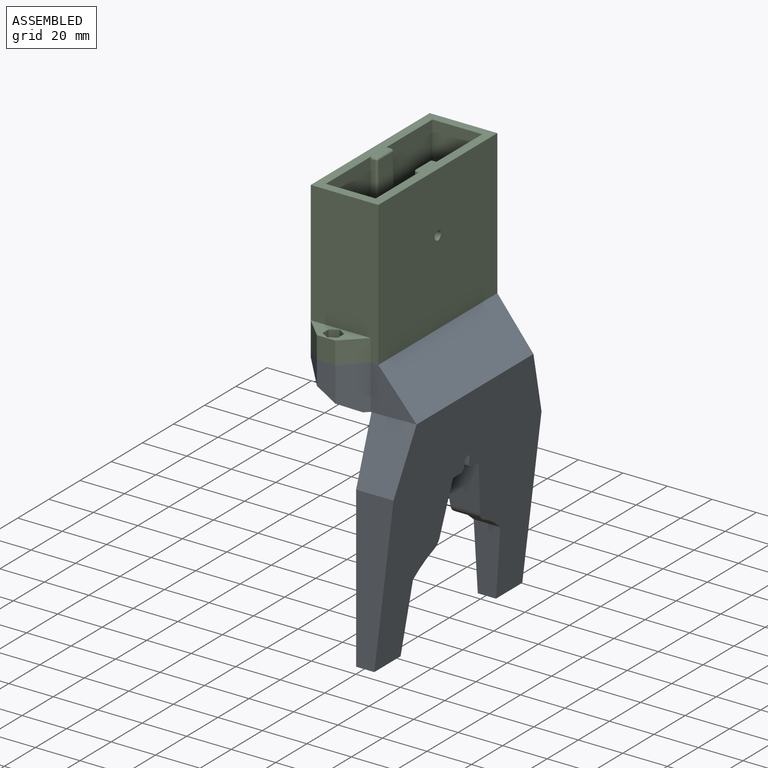
[diagram: assembled view]
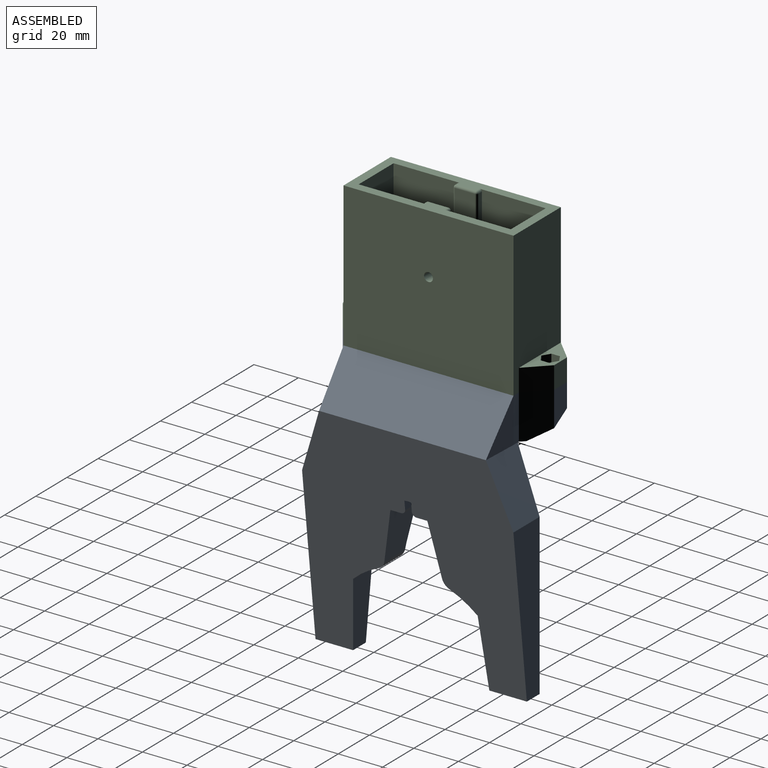
[diagram: assembled view, second angle]
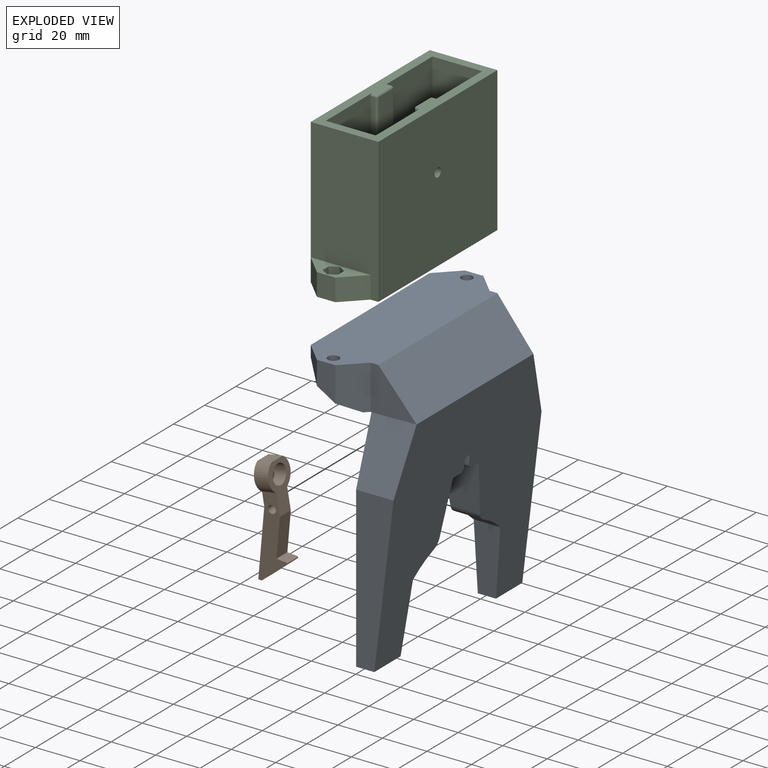
[diagram: exploded view]
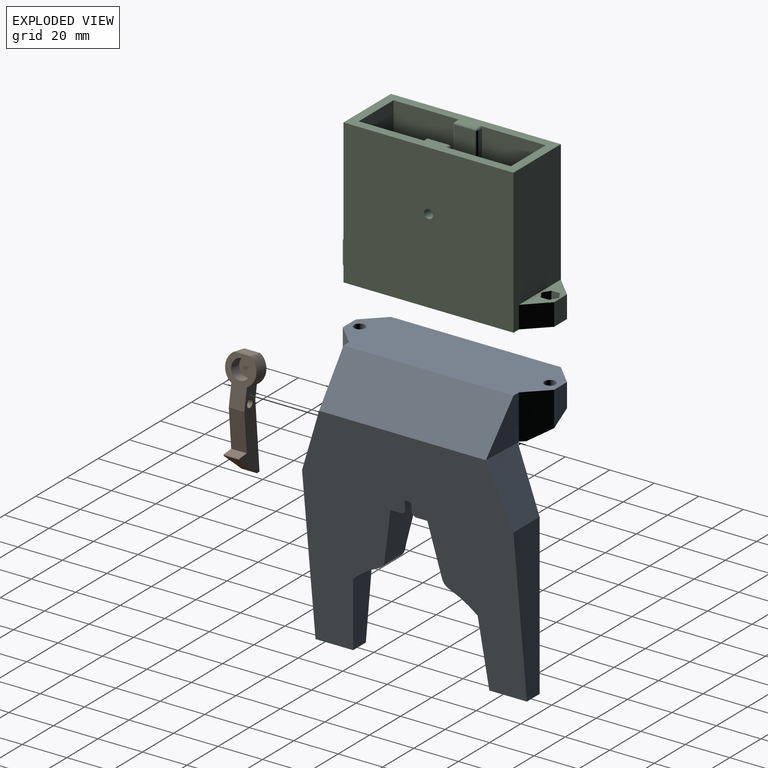
[diagram: exploded view, second angle]
ASSEMBLY  parts=3 mates=2
PART A: 76 faces, bbox 48.2x96.1x121.1 mm
  f0: plane 71.97x16.84mm, normal (0,1,0), area 900.5mm2, adj f1,f13,f29,f53
  f1: plane 100x34.53mm, normal (-1,0,0), area 2723.4mm2, adj f0,f10,f11,f12,f13,f15,f29,f54
  f2: cylinder r=8.67mm len=18.82mm, axis (-1,0,0), area 367.3mm2, adj f3,f9,f16,f17,f18,f19,f21,f32
  f3: plane 35x17mm, normal (-1,0,0), area 312.7mm2, adj f2,f5,f14,f23,f24,f25,f37,f46
  f4: plane 8.6x5.75mm, normal (-1,0,0), area 9.6mm2, adj f5,f6
  f5: cylinder r=4.3mm len=8.6mm, axis (-1,0,0), area 95.8mm2, adj f3,f4,f6,f8
  f6: cylinder r=4.1mm len=8.2mm, axis (-1,0,0), area 63mm2, adj f4,f5,f7,f8
  f7: plane 8.2x8.2mm, normal (-1,0,0), area 52.8mm2, adj f6
  f8: plane 8.1x3.45mm, normal (1,0,0), area 4.3mm2, adj f5,f6
  f9: plane 22.32x18mm, normal (0,-0.98,-0.2), area 354.2mm2, adj f2,f12,f14,f15,f53
  f10: plane 31.08x11.92mm, normal (0,-1,-0.08), area 313.6mm2, adj f1,f11,f13,f53
  f11: cylinder r=40.5mm len=12.88mm, axis (-1,0,0), area 180.7mm2, adj f1,f10,f12,f53
  f12: cylinder r=5mm len=13.32mm, axis (-1,0,0), area 63.4mm2, adj f1,f9,f11,f15,f53
  f13: plane 16.88x8.19mm, normal (0,0,-1), area 138.2mm2, adj f0,f1,f10,f53
  f14: plane 52.89x3.58mm, normal (-0.89,0.45,0), area 175.8mm2, adj f3,f9,f15,f54
  f15: cylinder r=2mm len=57.36mm, axis (0,0,1), area 51.1mm2, adj f1,f9,f12,f14,f54
  f16: plane 4.32x3.87mm, normal (0,-1,0), area 15.8mm2, adj f2,f17,f20,f53
  f17: plane 5.8x3.87mm, normal (-1,0,0), area 14.7mm2, adj f2,f16,f19
  f18: plane 4.75x1.62mm, normal (0,0,-1), area 7.7mm2, adj f2,f19,f20,f53
  f19: cylinder r=2mm len=6.75mm, axis (0,1,0), area 16.6mm2, adj f2,f17,f18,f20
  f20: cylinder r=2mm len=3.86mm, axis (-1,0,0), area 8.6mm2, adj f16,f18,f19,f53
  f21: plane 4.5x4mm, normal (1,0,0), area 11.3mm2, adj f2,f22,f24,f25
  f22: plane 4x2.5mm, normal (0.71,0,-0.71), area 14.1mm2, adj f21,f24,f25,f27
  f23: plane 6.5x4mm, normal (-0.5,0,0.87), area 30mm2, adj f3,f24,f25,f26
  f24: plane 22.25x6.5mm, normal (0,1,0), area 119.7mm2, adj f3,f21,f22,f23,f26,f27,f28
  f25: plane 22.25x6.5mm, normal (0,-1,0), area 119.7mm2, adj f3,f21,f22,f23,f26,f27,f28
  f26: plane 18.5x4mm, normal (-1,0,0), area 74mm2, adj f23,f24,f25,f27
  f27: plane 4x4mm, normal (0,0,-1), area 16mm2, adj f22,f24,f25,f26
  f28: cylinder r=1.75mm len=4mm, axis (0,-1,0), area 44mm2, adj f24,f25
  f29: plane 28.03x20.21mm, normal (0,0.94,0.34), area 551.2mm2, adj f0,f1,f53,f54
  f30: plane 71.97x16.84mm, normal (0,-1,0), area 900.5mm2, adj f31,f36,f52,f53
  f31: plane 100x34.53mm, normal (-1,0,0), area 2723.4mm2, adj f30,f33,f34,f35,f36,f38,f52,f55
  f32: plane 22.32x18mm, normal (0,0.98,-0.2), area 354.2mm2, adj f2,f35,f37,f38,f53
  f33: plane 31.08x11.92mm, normal (0,1,-0.08), area 313.6mm2, adj f31,f34,f36,f53
  f34: cylinder r=40.5mm len=12.88mm, axis (-1,0,0), area 180.7mm2, adj f31,f33,f35,f53
  f35: cylinder r=5mm len=13.32mm, axis (-1,0,0), area 63.4mm2, adj f31,f32,f34,f38,f53
  f36: plane 16.88x8.19mm, normal (0,0,-1), area 138.2mm2, adj f30,f31,f33,f53
  f37: plane 52.89x3.58mm, normal (-0.89,-0.45,0), area 175.8mm2, adj f3,f32,f38,f55
  f38: cylinder r=2mm len=57.36mm, axis (0,0,1), area 51.1mm2, adj f31,f32,f35,f37,f55
  f39: plane 4.32x3.87mm, normal (0,1,0), area 15.8mm2, adj f2,f40,f43,f53
  f40: plane 5.8x3.87mm, normal (-1,0,0), area 14.7mm2, adj f2,f39,f42
  f41: plane 4.75x1.62mm, normal (0,0,-1), area 7.7mm2, adj f2,f42,f43,f53
  f42: cylinder r=2mm len=6.75mm, axis (0,-1,0), area 16.6mm2, adj f2,f40,f41,f43
  f43: cylinder r=2mm len=3.86mm, axis (-1,0,0), area 8.6mm2, adj f39,f41,f42,f53
  f44: plane 4.5x4mm, normal (1,0,0), area 11.3mm2, adj f2,f45,f47,f48
  f45: plane 4x2.5mm, normal (0.71,0,-0.71), area 14.1mm2, adj f44,f47,f48,f50
  f46: plane 6.5x4mm, normal (-0.5,0,0.87), area 30mm2, adj f3,f47,f48,f49
  f47: plane 22.25x6.5mm, normal (0,-1,0), area 119.7mm2, adj f3,f44,f45,f46,f49,f50,f51
  f48: plane 22.25x6.5mm, normal (0,1,0), area 119.7mm2, adj f3,f44,f45,f46,f49,f50,f51
  f49: plane 18.5x4mm, normal (-1,0,0), area 74mm2, adj f46,f47,f48,f50
  f50: plane 4x4mm, normal (0,0,-1), area 16mm2, adj f45,f47,f48,f49
  f51: cylinder r=1.75mm len=4mm, axis (0,1,0), area 44mm2, adj f47,f48
  f52: plane 28.03x20.21mm, normal (0,-0.94,0.34), area 551.2mm2, adj f30,f31,f53,f55
  f53: plane 100.13x95.13mm, normal (0.99,0,-0.12), area 6465.2mm2, adj f0,f2,f9,f10,f11,f12,f13,f16
  f54: plane 31.7x22.21mm, normal (0,0,-1), area 65.7mm2, adj f1,f14,f15,f29,f57,f66,f67,f68
  f55: plane 31.7x22.21mm, normal (0,0,-1), area 65.7mm2, adj f31,f37,f38,f52,f57,f63,f64,f65
  f56: plane 95x30.4mm, normal (0,0,1), area 2610.7mm2, adj f58,f59,f60,f61,f62,f63,f64,f67
  f57: plane 96.08x25.98mm, normal (-0.52,0,-0.86), area 2465.9mm2, adj f3,f54,f55,f58,f59,f60,f61,f62
  f58: plane 76.4x5mm, normal (-1,0,0), area 382mm2, adj f56,f57,f60,f61
  f59: plane 15.6x8.3mm, normal (0,1,0), area 108.8mm2, adj f56,f57,f60,f68
  f60: plane 10.6x9.3mm, normal (-0.71,0.71,0), area 102.6mm2, adj f56,f57,f58,f59
  f61: plane 10.6x9.3mm, normal (-0.71,-0.71,0), area 102.6mm2, adj f56,f57,f58,f62
  f62: plane 15.6x8.3mm, normal (0,-1,0), area 108.8mm2, adj f56,f57,f61,f63
  f63: plane 20x9.3mm, normal (0.71,-0.71,0), area 240.3mm2, adj f55,f56,f57,f62,f64
  f64: plane 20x3.5mm, normal (0,-1,0), area 70mm2, adj f55,f56,f63,f65
  f65: plane 20x16.71mm, normal (0.04,-1,0), area 167.2mm2, adj f55,f64,f69
  f66: plane 20x16.71mm, normal (0.04,1,0), area 167.2mm2, adj f54,f67,f69
  f67: plane 20x3.5mm, normal (0,1,0), area 70mm2, adj f54,f56,f66,f68
  f68: plane 20x9.3mm, normal (0.71,0.71,0), area 240.3mm2, adj f54,f56,f57,f59,f67
  f69: plane 76.4x20mm, normal (0.77,0,0.64), area 1972.7mm2, adj f53,f56,f65,f66
  f70: cylinder r=4.25mm len=10.66mm, axis (0,0,-1), area 216.4mm2, adj f57,f71
  f71: plane 8.5x8.5mm, normal (0,0,-1), area 37.1mm2, adj f70,f75
  f72: cylinder r=4.25mm len=10.66mm, axis (0,0,-1), area 216.4mm2, adj f57,f73
  f73: plane 8.5x8.5mm, normal (0,0,-1), area 37.1mm2, adj f72,f74
  f74: cylinder r=2.5mm len=5mm, axis (0,0,-1), area 78.5mm2, adj f56,f73
  f75: cylinder r=2.5mm len=5mm, axis (0,0,-1), area 78.5mm2, adj f56,f71
PART B: 16 faces, bbox 16.8x14x49.5 mm
  f0: plane 17.39x14mm, normal (-0.97,0,-0.26), area 186.2mm2, adj f1,f3,f5,f13,f14,f15
  f1: cylinder r=7mm len=13.33mm, axis (-0.97,0,-0.26), area 94.5mm2, adj f0,f2,f14,f15
  f2: plane 20.83x14mm, normal (0.97,0,0.26), area 153mm2, adj f1,f3,f5,f7,f9,f14,f15
  f3: cylinder r=7mm len=13.33mm, axis (-0.97,0,-0.26), area 94.5mm2, adj f0,f2,f5,f14
  f4: cylinder r=1.75mm len=7mm, axis (0,1,0), area 77mm2, adj f5,f15
  f5: plane 37.82x13.67mm, normal (0,1,0), area 251.8mm2, adj f0,f2,f3,f4,f8,f9,f10,f11
  f6: plane 8.6x8.31mm, normal (0.97,0,0.26), area 58.1mm2, adj f7
  f7: cylinder r=4.3mm len=9.68mm, axis (0.97,0,0.26), area 143.2mm2, adj f2,f6
  f8: cylinder r=0.4mm len=7mm, axis (0,1,0), area 6.6mm2, adj f5,f10,f11,f15
  f9: plane 17.44x7mm, normal (1,0,0), area 122.1mm2, adj f2,f5,f10,f15
  f10: plane 7x4.53mm, normal (0,0,1), area 31.7mm2, adj f5,f8,f9,f15
  f11: plane 10.52x10.52mm, normal (0.71,0,-0.71), area 104.1mm2, adj f5,f8,f12,f15
  f12: plane 7x1.5mm, normal (0,0,-1), area 10.5mm2, adj f5,f11,f13,f15
  f13: plane 30.4x7mm, normal (-1,0,0), area 212.8mm2, adj f0,f5,f12,f15
  f14: plane 7.21x6.28mm, normal (-0.26,0,0.97), area 46.9mm2, adj f0,f1,f2,f3
  f15: plane 37.82x13.67mm, normal (0,-1,0), area 251.8mm2, adj f0,f1,f2,f4,f8,f9,f10,f11
PART C: 59 faces, bbox 30.4x95x65 mm
  f0: plane 95x30.4mm, normal (0,0,-1), area 2610.7mm2, adj f33,f34,f35,f36,f37,f38,f39,f40
  f1: plane 26.9x9.3mm, normal (0,0,1), area 122.1mm2, adj f35,f37,f38,f39,f50,f51,f52,f53
  f2: plane 26.9x9.3mm, normal (0,0,1), area 122.1mm2, adj f34,f40,f41,f42,f43,f44,f45,f46
  f3: cylinder r=1mm len=59mm, axis (0,0,-1), area 92.7mm2, adj f5,f11,f14,f16
  f4: cylinder r=1mm len=59mm, axis (0,0,-1), area 92.7mm2, adj f10,f12,f14,f16
  f5: plane 59x2mm, normal (0,1,0), area 118mm2, adj f3,f14,f17,f18
  f6: plane 59x2mm, normal (0,1,0), area 118mm2, adj f13,f14,f20,f21
  f7: sphere r=1mm, area 1.6mm2, adj f13,f21,f22
  f8: sphere r=1mm, area 1.6mm2, adj f15,f22,f23
  f9: plane 59x2mm, normal (0,-1,0), area 118mm2, adj f14,f15,f23,f24
  f10: plane 59x2mm, normal (0,-1,0), area 118mm2, adj f4,f14,f26,f27
  f11: sphere r=1mm, area 1.6mm2, adj f3,f17,f28
  f12: sphere r=1mm, area 1.6mm2, adj f4,f27,f28
  f13: cylinder r=1mm len=59mm, axis (0,0,1), area 92.7mm2, adj f6,f7,f14,f29
  f14: plane 68.4x22.4mm, normal (0,0,1), area 1467mm2, adj f3,f4,f5,f6,f9,f10,f13,f15
  f15: cylinder r=1mm len=59mm, axis (0,0,1), area 92.7mm2, adj f8,f9,f14,f29
  f16: plane 59x9mm, normal (-1,0,0), area 518.4mm2, adj f3,f4,f14,f28,f30
  f17: cylinder r=1mm len=2mm, axis (-1,0,0), area 3.1mm2, adj f5,f11,f18,f31
  f18: plane 60x29.7mm, normal (-1,0,0), area 1722.2mm2, adj f5,f14,f17,f19,f31
  f19: plane 60x22.4mm, normal (0,-1,0), area 1344mm2, adj f14,f18,f20,f31
  f20: plane 60x29.7mm, normal (1,0,0), area 1722.2mm2, adj f6,f14,f19,f21,f31
  f21: cylinder r=1mm len=2mm, axis (-1,0,0), area 3.1mm2, adj f6,f7,f20,f31
  f22: cylinder r=1mm len=9mm, axis (0,1,0), area 14.1mm2, adj f7,f8,f29,f31
  f23: cylinder r=1mm len=2mm, axis (-1,0,0), area 3.1mm2, adj f8,f9,f24,f31
  f24: plane 60x29.7mm, normal (1,0,0), area 1722.2mm2, adj f9,f14,f23,f25,f31
  f25: plane 60x22.4mm, normal (0,1,0), area 1344mm2, adj f14,f24,f26,f31
  f26: plane 60x29.7mm, normal (-1,0,0), area 1722.2mm2, adj f10,f14,f25,f27,f31
  f27: cylinder r=1mm len=2mm, axis (-1,0,0), area 3.1mm2, adj f10,f12,f26,f31
  f28: cylinder r=1mm len=9mm, axis (0,-1,0), area 14.1mm2, adj f11,f12,f16,f31
  f29: plane 59x9mm, normal (1,0,0), area 518.4mm2, adj f13,f14,f15,f22,f32
  f30: cylinder r=2mm len=7mm, axis (-1,0,0), area 88mm2, adj f16,f36
  f31: plane 76.4x30.4mm, normal (0,0,1), area 826.4mm2, adj f17,f18,f19,f20,f21,f22,f23,f24
  f32: cylinder r=2mm len=7mm, axis (-1,0,0), area 88mm2, adj f29,f33
  f33: plane 76.4x65mm, normal (-1,0,0), area 4953.4mm2, adj f0,f31,f32,f34,f35,f37,f42
  f34: plane 65x30.4mm, normal (0,-1,0), area 1707mm2, adj f0,f2,f31,f33,f36,f41
  f35: plane 65x30.4mm, normal (0,1,0), area 1707mm2, adj f0,f1,f31,f33,f36,f38
  f36: plane 76.4x65mm, normal (1,0,0), area 4953.4mm2, adj f0,f30,f31,f34,f35
  f37: plane 10x9.3mm, normal (-0.71,0.71,0), area 131.5mm2, adj f0,f1,f33,f39
  f38: plane 10x9.3mm, normal (0.71,0.71,0), area 131.5mm2, adj f0,f1,f35,f39
  f39: plane 10x8.3mm, normal (0,1,0), area 83mm2, adj f0,f1,f37,f38
  f40: plane 10x8.3mm, normal (0,-1,0), area 83mm2, adj f0,f2,f41,f42
  f41: plane 10x9.3mm, normal (0.71,-0.71,0), area 131.5mm2, adj f0,f2,f34,f40
  f42: plane 10x9.3mm, normal (-0.71,-0.71,0), area 131.5mm2, adj f0,f2,f33,f40
  f43: plane 5x3.87mm, normal (1,0,0), area 19.4mm2, adj f2,f44,f48,f49
  f44: plane 5x3.5mm, normal (0.51,0.86,0), area 20.3mm2, adj f2,f43,f45,f49
  f45: plane 5x3.5mm, normal (-0.51,0.86,0), area 20.3mm2, adj f2,f44,f46,f49
  f46: plane 5x3.87mm, normal (-1,0,0), area 19.4mm2, adj f2,f45,f47,f49
  f47: plane 5x3.5mm, normal (-0.51,-0.86,0), area 20.3mm2, adj f2,f46,f48,f49
  f48: plane 5x3.5mm, normal (0.51,-0.86,0), area 20.3mm2, adj f2,f43,f47,f49
  f49: plane 8x7mm, normal (0,0,1), area 21.9mm2, adj f43,f44,f45,f46,f47,f48,f58
  f50: plane 5x3.5mm, normal (-0.51,-0.86,0), area 20.3mm2, adj f1,f51,f55,f56
  f51: plane 5x3.5mm, normal (0.51,-0.86,0), area 20.3mm2, adj f1,f50,f52,f56
  f52: plane 5x3.87mm, normal (1,0,0), area 19.4mm2, adj f1,f51,f53,f56
  f53: plane 5x3.5mm, normal (0.51,0.86,0), area 20.3mm2, adj f1,f52,f54,f56
  f54: plane 5x3.5mm, normal (-0.51,0.86,0), area 20.3mm2, adj f1,f53,f55,f56
  f55: plane 5x3.87mm, normal (-1,0,0), area 19.4mm2, adj f1,f50,f54,f56
  f56: plane 8x7mm, normal (0,0,1), area 21.9mm2, adj f50,f51,f52,f53,f54,f55,f57
  f57: cylinder r=2.5mm len=5mm, axis (0,0,-1), area 78.5mm2, adj f0,f56
  f58: cylinder r=2.5mm len=5mm, axis (0,0,-1), area 78.5mm2, adj f0,f49
PLACE A t=(-23.19,-12.76,-16.14)mm
PLACE B rot(axis=(0,1,0),5.1deg) t=(-26.73,-13.26,-16.16)mm
PLACE C t=(-23.19,-12.76,-16.14)mm fixed
MATE fastened C.f0 <-> A.f56  axis (0,0,-1) through (-31.59,-12.76,63.86)mm
MATE cylindrical B.f4 <-> A.f28  axis (0,-1,0) through (-25.19,-16.76,23.86)mm
